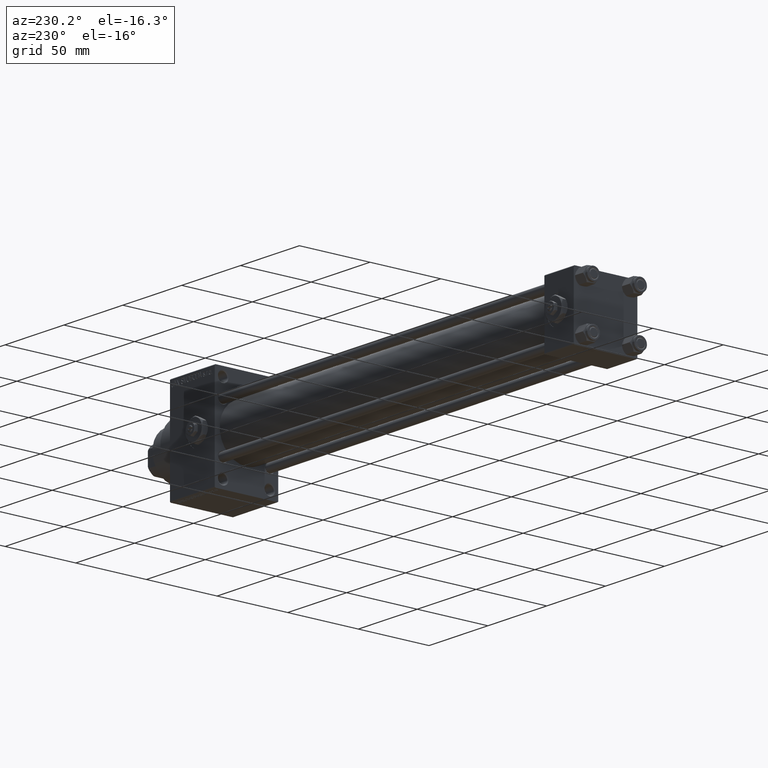
[diagram: clean part render]
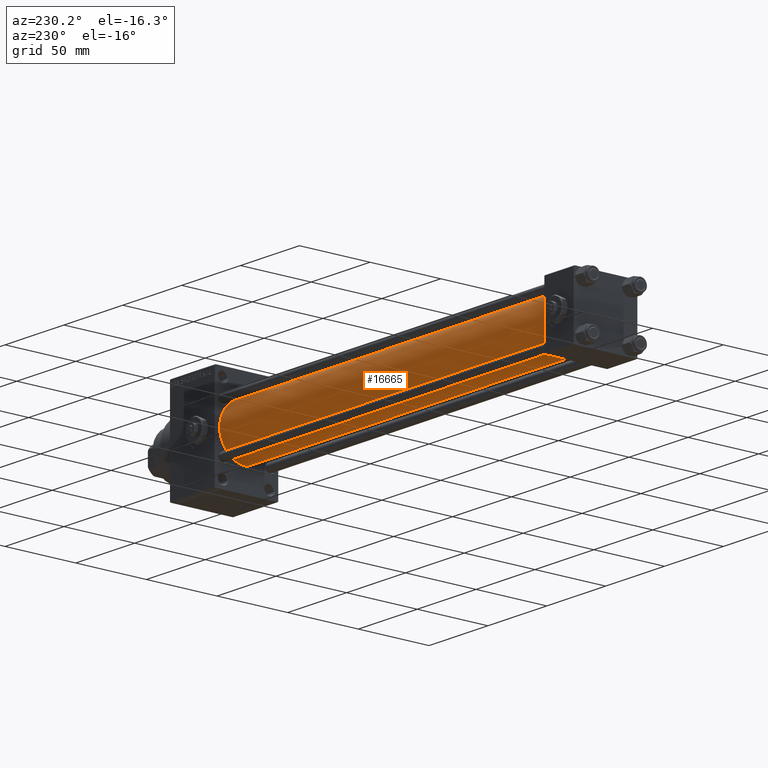
[diagram: same view with one face highlighted and labeled with its STEP entity id]
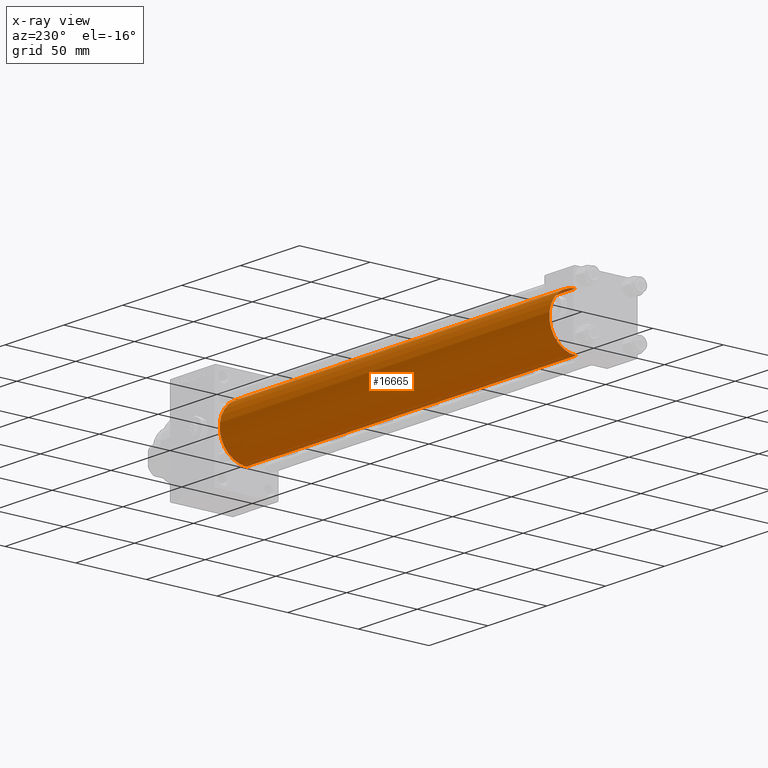
[diagram: x-ray of the same camera — body ghosted, the highlighted face saturated]
A machine part, auxiliary view. The second image highlights one B-rep face of the part: STEP entity #16665.
The next image is the same camera in x-ray: the body ghosted, the highlighted face saturated — about 0% of this face is hidden behind the body in this view.
In plain terms, the highlighted cylindrical surface (edge-blend (fillet) strip) has radius 19 mm, axis along (-1, -0, -0).
Its self-contained STEP definition (entity closure, byte-faithful):
#369 = AXIS2_PLACEMENT_3D ( 'NONE', #692, #444, #15849 ) ;
#444 = DIRECTION ( 'NONE',  ( 1.000000000000000000, -0.000000000000000000, 0.000000000000000000 ) ) ;
#692 = CARTESIAN_POINT ( 'NONE',  ( 25.00000000000002132, -2.602085213965210642E-15, 0.000000000000000000 ) ) ;
#1658 = DIRECTION ( 'NONE',  ( -1.000000000000000000, -0.000000000000000000, -0.000000000000000000 ) ) ;
#2089 = ORIENTED_EDGE ( 'NONE', *, *, #35297, .T. ) ;
#2829 = CARTESIAN_POINT ( 'NONE',  ( 305.0000000000000568, -2.752562955852396712E-16, -19.00000000000000000 ) ) ;
#3079 = EDGE_CURVE ( 'NONE', #13396, #4528, #41448, .T. ) ;
#4528 = VERTEX_POINT ( 'NONE', #32786 ) ;
#5195 = CARTESIAN_POINT ( 'NONE',  ( 305.0000000000000568, -2.752562955852396712E-16, -19.00000000000000000 ) ) ;
#5672 = VERTEX_POINT ( 'NONE', #6502 ) ;
#6502 = CARTESIAN_POINT ( 'NONE',  ( 25.00000000000002132, -2.752562955852396712E-16, -19.00000000000000000 ) ) ;
#7704 = DIRECTION ( 'NONE',  ( 0.000000000000000000, 0.000000000000000000, 1.000000000000000000 ) ) ;
#9102 = VERTEX_POINT ( 'NONE', #5195 ) ;
#9589 = CARTESIAN_POINT ( 'NONE',  ( 305.0000000000000568, -2.602085213965210642E-15, 0.000000000000000000 ) ) ;
#12164 = FACE_OUTER_BOUND ( 'NONE', #44778, .T. ) ;
#12526 = AXIS2_PLACEMENT_3D ( 'NONE', #9589, #40399, #39669 ) ;
#13396 = VERTEX_POINT ( 'NONE', #17280 ) ;
#15849 = DIRECTION ( 'NONE',  ( 0.000000000000000000, 0.000000000000000000, 1.000000000000000000 ) ) ;
#15947 = EDGE_CURVE ( 'NONE', #9102, #13396, #44234, .T. ) ;
#16665 = ADVANCED_FACE ( 'NONE', ( #12164 ), #23120, .T. ) ;
#17280 = CARTESIAN_POINT ( 'NONE',  ( 305.0000000000000568, -2.602085213965210642E-15, 19.00000000000000000 ) ) ;
#18849 = CARTESIAN_POINT ( 'NONE',  ( 305.0000000000000568, -2.602085213965210642E-15, 19.00000000000000000 ) ) ;
#20180 = VECTOR ( 'NONE', #36640, 1000.000000000000000 ) ;
#22509 = ORIENTED_EDGE ( 'NONE', *, *, #36644, .T. ) ;
#23120 = CYLINDRICAL_SURFACE ( 'NONE', #37136, 19.00000000000000000 ) ;
#23309 = VECTOR ( 'NONE', #30271, 1000.000000000000000 ) ;
#30271 = DIRECTION ( 'NONE',  ( -1.000000000000000000, -0.000000000000000000, -0.000000000000000000 ) ) ;
#32433 = ORIENTED_EDGE ( 'NONE', *, *, #15947, .F. ) ;
#32786 = CARTESIAN_POINT ( 'NONE',  ( 25.00000000000002132, -2.602085213965210642E-15, 19.00000000000000000 ) ) ;
#33153 = LINE ( 'NONE', #2829, #20180 ) ;
#35297 = EDGE_CURVE ( 'NONE', #5672, #4528, #37655, .T. ) ;
#36640 = DIRECTION ( 'NONE',  ( -1.000000000000000000, -0.000000000000000000, -0.000000000000000000 ) ) ;
#36644 = EDGE_CURVE ( 'NONE', #9102, #5672, #33153, .T. ) ;
#37136 = AXIS2_PLACEMENT_3D ( 'NONE', #38268, #1658, #7704 ) ;
#37655 = CIRCLE ( 'NONE', #369, 19.00000000000000000 ) ;
#38268 = CARTESIAN_POINT ( 'NONE',  ( 305.0000000000000568, -2.602085213965210642E-15, 0.000000000000000000 ) ) ;
#39484 = ORIENTED_EDGE ( 'NONE', *, *, #3079, .F. ) ;
#39669 = DIRECTION ( 'NONE',  ( 0.000000000000000000, 0.000000000000000000, -1.000000000000000000 ) ) ;
#40399 = DIRECTION ( 'NONE',  ( 1.000000000000000000, 0.000000000000000000, 0.000000000000000000 ) ) ;
#41448 = LINE ( 'NONE', #18849, #23309 ) ;
#44234 = CIRCLE ( 'NONE', #12526, 19.00000000000000000 ) ;
#44778 = EDGE_LOOP ( 'NONE', ( #32433, #22509, #2089, #39484 ) ) ;